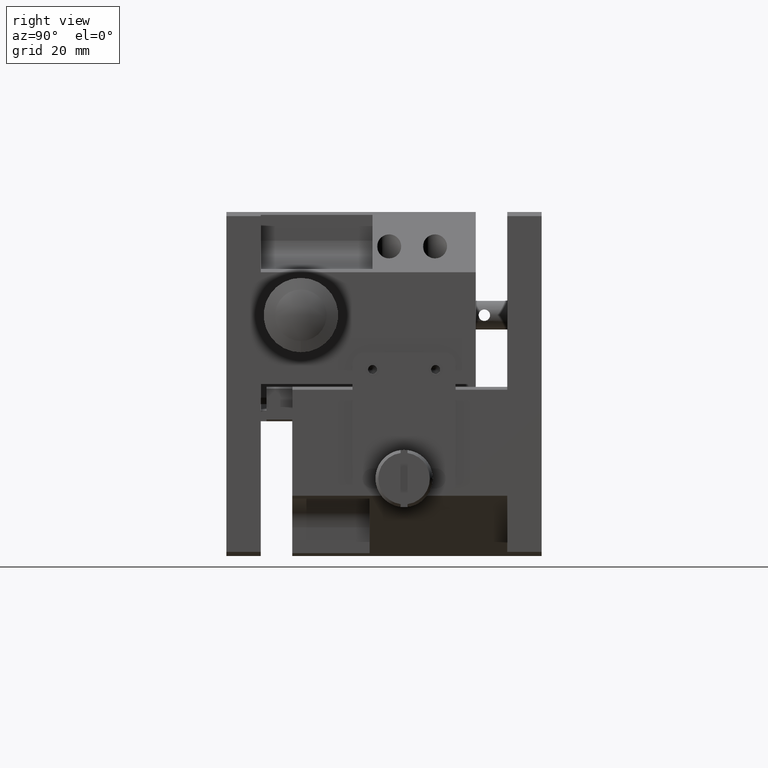
[diagram: clean part render]
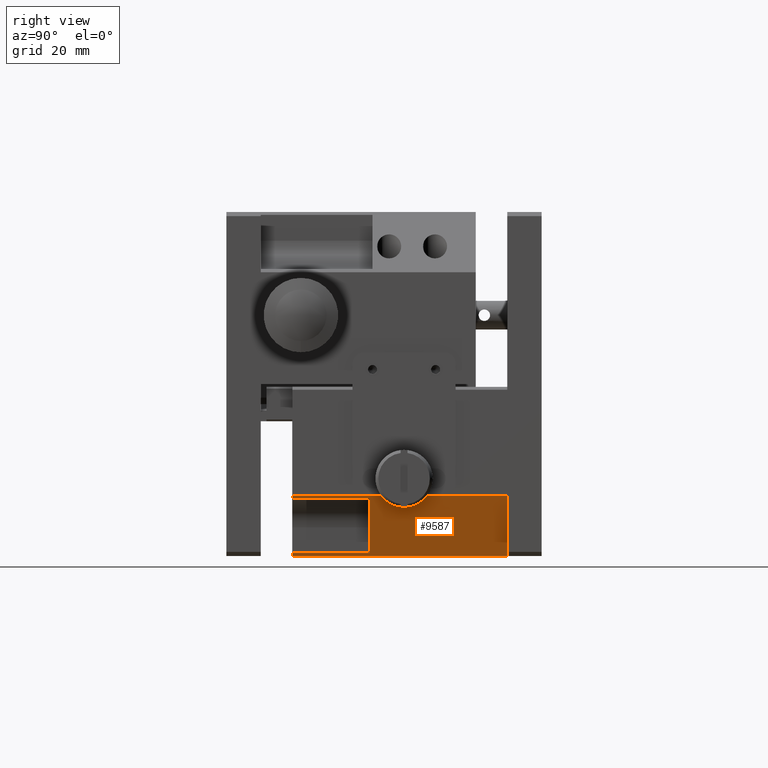
[diagram: same view with one face highlighted and labeled with its STEP entity id]
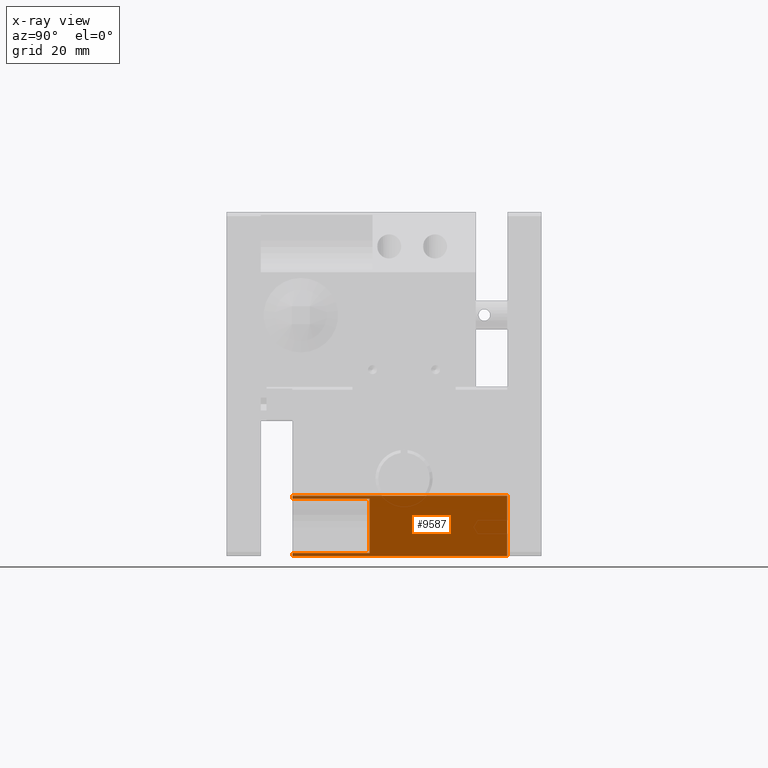
[diagram: x-ray of the same camera — body ghosted, the highlighted face saturated]
A machine part, right view. The second image highlights one B-rep face of the part: STEP entity #9587.
The next image is the same camera in x-ray: the body ghosted, the highlighted face saturated — about 0% of this face is hidden behind the body in this view.
In plain terms, the highlighted planar face has unit normal (0.7071, 0, -0.7071).
Its self-contained STEP definition (entity closure, byte-faithful):
#152 = LINE ( 'NONE', #11421, #4547 ) ;
#194 = CARTESIAN_POINT ( 'NONE',  ( 60.00000000000009948, 11.50000000000000000, -49.50000000000000000 ) ) ;
#283 = VERTEX_POINT ( 'NONE', #6705 ) ;
#298 = CARTESIAN_POINT ( 'NONE',  ( 59.50000000000009948, 11.50000000000000178, -50.00000000000000711 ) ) ;
#879 = EDGE_CURVE ( 'NONE', #5094, #4343, #6006, .T. ) ;
#888 = VERTEX_POINT ( 'NONE', #2432 ) ;
#1184 = LINE ( 'NONE', #11706, #2774 ) ;
#1229 = VECTOR ( 'NONE', #4348, 1000.000000000000114 ) ;
#1266 = CARTESIAN_POINT ( 'NONE',  ( 49.50000000000000000, 49.00000000000000000, -60.00000000000000000 ) ) ;
#1470 = VERTEX_POINT ( 'NONE', #4703 ) ;
#1566 = VERTEX_POINT ( 'NONE', #5916 ) ;
#1818 = ORIENTED_EDGE ( 'NONE', *, *, #7534, .F. ) ;
#1821 = CARTESIAN_POINT ( 'NONE',  ( 49.50000000000000000, 49.00000000000000000, -60.00000000000000000 ) ) ;
#1863 = ORIENTED_EDGE ( 'NONE', *, *, #11983, .T. ) ;
#1865 = EDGE_CURVE ( 'NONE', #4343, #1470, #10342, .T. ) ;
#1930 = FACE_OUTER_BOUND ( 'NONE', #7918, .T. ) ;
#2012 = LINE ( 'NONE', #1266, #10172 ) ;
#2316 = CARTESIAN_POINT ( 'NONE',  ( 60.00000000000009948, 25.00000000000000711, -49.50000000000000000 ) ) ;
#2352 = EDGE_CURVE ( 'NONE', #283, #10693, #3549, .T. ) ;
#2432 = CARTESIAN_POINT ( 'NONE',  ( 55.86862437842200535, 49.00000000000000000, -53.63137562157800886 ) ) ;
#2710 = ORIENTED_EDGE ( 'NONE', *, *, #5071, .T. ) ;
#2723 = DIRECTION ( 'NONE',  ( -0.7071067811865524577, 0.000000000000000000, -0.7071067811865426878 ) ) ;
#2774 = VECTOR ( 'NONE', #11584, 1000.000000000000000 ) ;
#3058 = CARTESIAN_POINT ( 'NONE',  ( 55.86862437842199824, 49.00000000000000000, -53.63137562157800886 ) ) ;
#3092 = DIRECTION ( 'NONE',  ( 0.7071067811865475727, 0.000000000000000000, -0.7071067811865475727 ) ) ;
#3508 = VECTOR ( 'NONE', #12111, 1000.000000000000114 ) ;
#3549 = LINE ( 'NONE', #1821, #5219 ) ;
#3848 = EDGE_CURVE ( 'NONE', #283, #3942, #2012, .T. ) ;
#3942 = VERTEX_POINT ( 'NONE', #4856 ) ;
#4133 = LINE ( 'NONE', #11071, #10999 ) ;
#4343 = VERTEX_POINT ( 'NONE', #7757 ) ;
#4348 = DIRECTION ( 'NONE',  ( -0.7071067811865474617, 0.000000000000000000, -0.7071067811865474617 ) ) ;
#4385 = ORIENTED_EDGE ( 'NONE', *, *, #11673, .F. ) ;
#4547 = VECTOR ( 'NONE', #4665, 1000.000000000000000 ) ;
#4608 = ORIENTED_EDGE ( 'NONE', *, *, #879, .T. ) ;
#4665 = DIRECTION ( 'NONE',  ( 0.000000000000000000, 1.000000000000000000, 0.000000000000000000 ) ) ;
#4696 = CARTESIAN_POINT ( 'NONE',  ( 50.00000000000000000, 11.50000000000000000, -59.50000000000000711 ) ) ;
#4703 = CARTESIAN_POINT ( 'NONE',  ( 50.00000000000002132, 11.50000000000000178, -59.50000000000002132 ) ) ;
#4739 = CARTESIAN_POINT ( 'NONE',  ( 53.63137562157800886, 49.00000000000000000, -55.86862437842200535 ) ) ;
#4771 = DIRECTION ( 'NONE',  ( -0.7071067811865474617, 0.000000000000000000, -0.7071067811865474617 ) ) ;
#4856 = CARTESIAN_POINT ( 'NONE',  ( 49.50000000000002842, 11.50000000000000000, -60.00000000000002842 ) ) ;
#5071 = EDGE_CURVE ( 'NONE', #888, #11195, #11305, .T. ) ;
#5094 = VERTEX_POINT ( 'NONE', #10638 ) ;
#5219 = VECTOR ( 'NONE', #10253, 1000.000000000000114 ) ;
#5890 = ORIENTED_EDGE ( 'NONE', *, *, #11082, .T. ) ;
#5916 = CARTESIAN_POINT ( 'NONE',  ( 60.00000000000000000, 11.49999999999999645, -49.50000000000005684 ) ) ;
#6006 = LINE ( 'NONE', #2316, #1229 ) ;
#6099 = DIRECTION ( 'NONE',  ( -0.7071067811865474617, 0.000000000000000000, -0.7071067811865474617 ) ) ;
#6100 = EDGE_CURVE ( 'NONE', #1566, #8355, #4133, .T. ) ;
#6412 = ORIENTED_EDGE ( 'NONE', *, *, #3848, .F. ) ;
#6629 = LINE ( 'NONE', #3058, #7174 ) ;
#6705 = CARTESIAN_POINT ( 'NONE',  ( 49.49999999999997868, 49.00000000000000000, -60.00000000000000711 ) ) ;
#7174 = VECTOR ( 'NONE', #8600, 1000.000000000000114 ) ;
#7449 = DIRECTION ( 'NONE',  ( -0.000000000000000000, -1.000000000000000000, -0.000000000000000000 ) ) ;
#7534 = EDGE_CURVE ( 'NONE', #888, #10693, #6629, .T. ) ;
#7757 = CARTESIAN_POINT ( 'NONE',  ( 50.00000000000003553, 25.00000000000000711, -59.50000000000004974 ) ) ;
#7918 = EDGE_LOOP ( 'NONE', ( #11656, #1818, #2710, #4385, #9975, #5890, #4608, #9368, #1863, #6412 ) ) ;
#8355 = VERTEX_POINT ( 'NONE', #298 ) ;
#8363 = CARTESIAN_POINT ( 'NONE',  ( 55.86862437842199824, 49.00000000000000000, -53.63137562157800886 ) ) ;
#8409 = AXIS2_PLACEMENT_3D ( 'NONE', #194, #3092, #4771 ) ;
#8600 = DIRECTION ( 'NONE',  ( -0.7071067811865474617, 0.000000000000000000, -0.7071067811865474617 ) ) ;
#8854 = VECTOR ( 'NONE', #7449, 1000.000000000000000 ) ;
#9368 = ORIENTED_EDGE ( 'NONE', *, *, #1865, .T. ) ;
#9587 = ADVANCED_FACE ( 'NONE', ( #1930 ), #10551, .T. ) ;
#9975 = ORIENTED_EDGE ( 'NONE', *, *, #6100, .T. ) ;
#10172 = VECTOR ( 'NONE', #11610, 1000.000000000000000 ) ;
#10253 = DIRECTION ( 'NONE',  ( 0.7071067811865481278, 0.000000000000000000, 0.7071067811865469066 ) ) ;
#10284 = CARTESIAN_POINT ( 'NONE',  ( 50.00000000000004974, 11.50000000000000000, -59.50000000000004974 ) ) ;
#10342 = LINE ( 'NONE', #10284, #8854 ) ;
#10443 = CARTESIAN_POINT ( 'NONE',  ( 60.00000000000000000, 49.00000000000000000, -49.50000000000000000 ) ) ;
#10551 = PLANE ( 'NONE',  #8409 ) ;
#10638 = CARTESIAN_POINT ( 'NONE',  ( 59.50000000000009948, 25.00000000000000711, -50.00000000000000711 ) ) ;
#10693 = VERTEX_POINT ( 'NONE', #4739 ) ;
#10999 = VECTOR ( 'NONE', #6099, 1000.000000000000114 ) ;
#11071 = CARTESIAN_POINT ( 'NONE',  ( 60.00000000000009948, 11.50000000000000000, -49.50000000000000000 ) ) ;
#11082 = EDGE_CURVE ( 'NONE', #8355, #5094, #152, .T. ) ;
#11195 = VERTEX_POINT ( 'NONE', #10443 ) ;
#11212 = LINE ( 'NONE', #4696, #11816 ) ;
#11305 = LINE ( 'NONE', #8363, #3508 ) ;
#11421 = CARTESIAN_POINT ( 'NONE',  ( 59.50000000000009948, 11.50000000000000000, -50.00000000000000000 ) ) ;
#11584 = DIRECTION ( 'NONE',  ( -0.000000000000000000, 1.000000000000000000, 0.000000000000000000 ) ) ;
#11610 = DIRECTION ( 'NONE',  ( -0.000000000000000000, -1.000000000000000000, -0.000000000000000000 ) ) ;
#11656 = ORIENTED_EDGE ( 'NONE', *, *, #2352, .T. ) ;
#11673 = EDGE_CURVE ( 'NONE', #1566, #11195, #1184, .T. ) ;
#11706 = CARTESIAN_POINT ( 'NONE',  ( 60.00000000000000000, 49.00000000000000000, -49.50000000000000000 ) ) ;
#11816 = VECTOR ( 'NONE', #2723, 1000.000000000000000 ) ;
#11983 = EDGE_CURVE ( 'NONE', #1470, #3942, #11212, .T. ) ;
#12111 = DIRECTION ( 'NONE',  ( 0.7071067811865469066, 0.000000000000000000, 0.7071067811865481278 ) ) ;